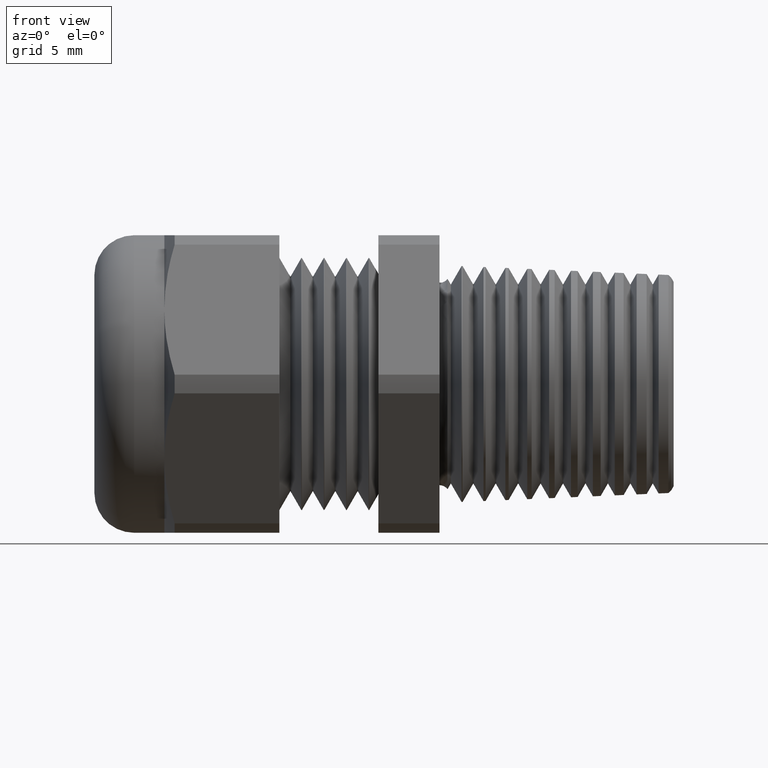
[diagram: clean part render]
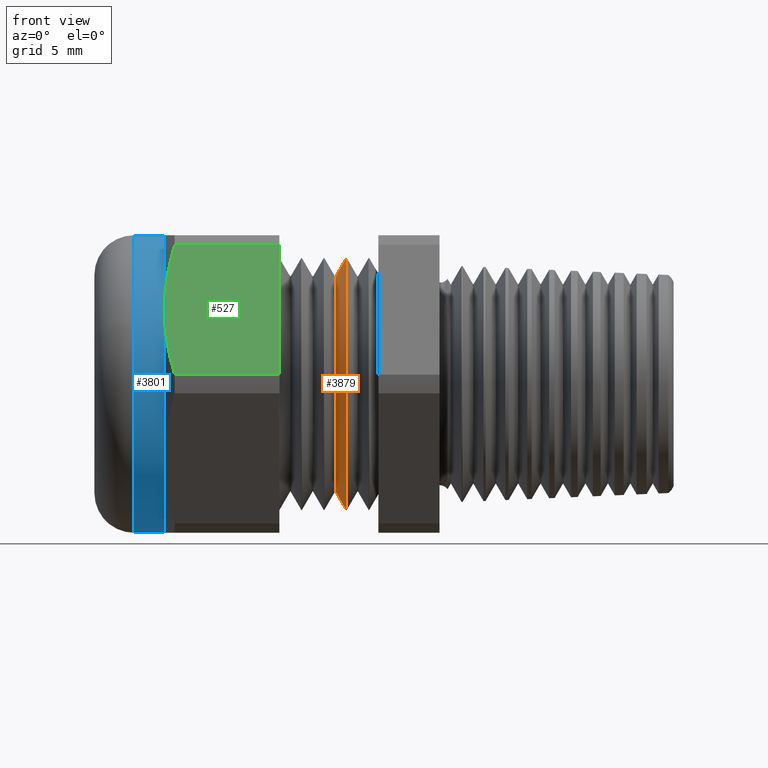
[diagram: same view with three faces highlighted in distinct colors, each labeled with its STEP entity id]
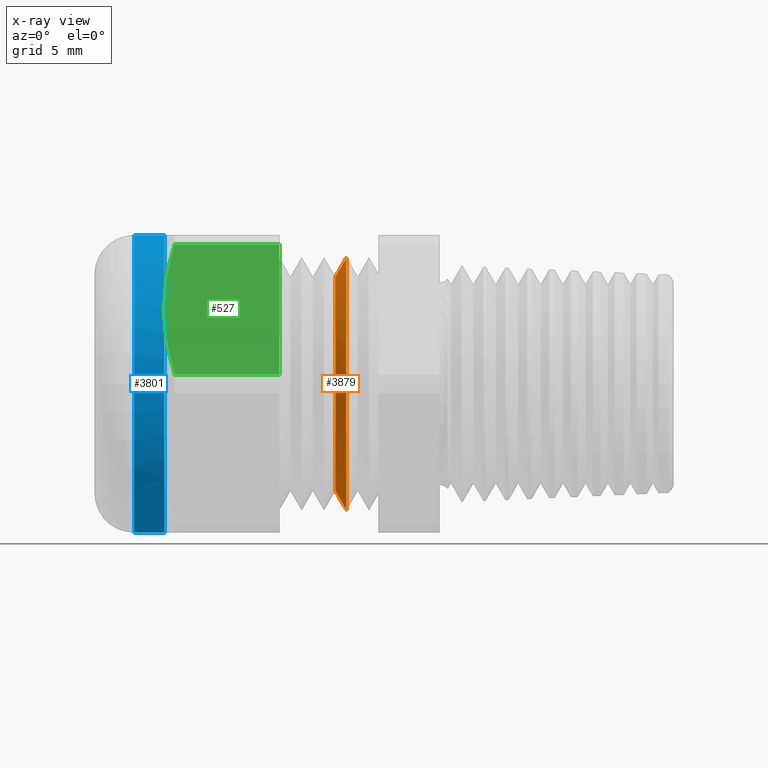
[diagram: x-ray of the same camera — body ghosted, the three highlighted faces saturated]
A machine part, front view with three faces highlighted in distinct colors.
The next image is the same camera in x-ray (body ghosted, the three faces saturated) — at least one of them is partly hidden behind the body in this view.
Their STEP definitions:

[orange] entity #3879 — the highlighted conical surface has half-angle 60 deg.
#108 = VERTEX_POINT ( 'NONE', #2159 ) ;
#110 = EDGE_CURVE ( 'NONE', #108, #111, #2117, .T. ) ;
#111 = VERTEX_POINT ( 'NONE', #2151 ) ;
#113 = VERTEX_POINT ( 'NONE', #2116 ) ;
#115 = EDGE_CURVE ( 'NONE', #129, #113, #2121, .T. ) ;
#129 = VERTEX_POINT ( 'NONE', #2136 ) ;
#436 = EDGE_CURVE ( 'NONE', #113, #111, #2713, .T. ) ;
#1288 = DIRECTION ( 'NONE',  ( 0.0000000000000000000, 0.0000000000000000000, -1.000000000000000000 ) ) ;
#1289 = DIRECTION ( 'NONE',  ( 1.000000000000000000, -0.0000000000000000000, -0.0000000000000000000 ) ) ;
#1290 = CARTESIAN_POINT ( 'NONE',  ( -0.2628611240625034500, 0.0000000000000000000, 0.0000000000000000000 ) ) ;
#1291 = AXIS2_PLACEMENT_3D ( 'NONE', #1290, #1289, #1288 ) ;
#1292 = CIRCLE ( 'NONE', #1291, 0.2698875000000000000 ) ;
#1341 = DIRECTION ( 'NONE',  ( 0.0000000000000000000, 0.0000000000000000000, -1.000000000000000000 ) ) ;
#1342 = DIRECTION ( 'NONE',  ( 1.000000000000000000, -0.0000000000000000000, -0.0000000000000000000 ) ) ;
#1343 = AXIS2_PLACEMENT_3D ( 'NONE', #1345, #1342, #1341 ) ;
#1345 = CARTESIAN_POINT ( 'NONE',  ( -0.2628611240625034500, 0.0000000000000000000, 0.0000000000000000000 ) ) ;
#1346 = CONICAL_SURFACE ( 'NONE', #1343, 0.2698875000000000000, 1.047197551196595400 ) ;
#1347 = FACE_OUTER_BOUND ( 'NONE', #3882, .T. ) ;
#2116 = CARTESIAN_POINT ( 'NONE',  ( -0.2350833592361174000, 0.0000000000000000000, 0.3180000000000000000 ) ) ;
#2117 = LINE ( 'NONE', #2144, #2160 ) ;
#2119 = VECTOR ( 'NONE', #2138, 39.37007874015748100 ) ;
#2120 = CARTESIAN_POINT ( 'NONE',  ( -0.2628611240625034500, 3.305059473172368400E-017, 0.2698875000000000000 ) ) ;
#2121 = LINE ( 'NONE', #2120, #2119 ) ;
#2136 = CARTESIAN_POINT ( 'NONE',  ( -0.2628611240625034500, 3.599653839163763600E-017, 0.2698875000000000000 ) ) ;
#2138 = DIRECTION ( 'NONE',  ( 0.5000000000000020000, 1.060540212046012000E-016, 0.8660254037844374900 ) ) ;
#2144 = CARTESIAN_POINT ( 'NONE',  ( -0.2628611240625034500, 0.0000000000000000000, -0.2698875000000000000 ) ) ;
#2151 = CARTESIAN_POINT ( 'NONE',  ( -0.2350833592361174000, 3.894248205155160100E-017, -0.3180000000000000000 ) ) ;
#2152 = DIRECTION ( 'NONE',  ( 0.5000000000000020000, 0.0000000000000000000, -0.8660254037844374900 ) ) ;
#2159 = CARTESIAN_POINT ( 'NONE',  ( -0.2628611240625034500, 0.0000000000000000000, -0.2698875000000000000 ) ) ;
#2160 = VECTOR ( 'NONE', #2152, 39.37007874015748100 ) ;
#2711 = CARTESIAN_POINT ( 'NONE',  ( -0.2350833592361174000, 0.0000000000000000000, 0.0000000000000000000 ) ) ;
#2712 = AXIS2_PLACEMENT_3D ( 'NONE', #2711, #2759, #2758 ) ;
#2713 = CIRCLE ( 'NONE', #2712, 0.3180000000000000000 ) ;
#2758 = DIRECTION ( 'NONE',  ( 0.0000000000000000000, 0.0000000000000000000, -1.000000000000000000 ) ) ;
#2759 = DIRECTION ( 'NONE',  ( 1.000000000000000000, -0.0000000000000000000, -0.0000000000000000000 ) ) ;
#3819 = ORIENTED_EDGE ( 'NONE', *, *, #3820, .T. ) ;
#3820 = EDGE_CURVE ( 'NONE', #129, #108, #1292, .T. ) ;
#3821 = ORIENTED_EDGE ( 'NONE', *, *, #110, .T. ) ;
#3879 = ADVANCED_FACE ( 'NONE', ( #1347 ), #1346, .T. ) ;
#3881 = ORIENTED_EDGE ( 'NONE', *, *, #115, .F. ) ;
#3882 = EDGE_LOOP ( 'NONE', ( #3881, #3819, #3821, #3910 ) ) ;
#3910 = ORIENTED_EDGE ( 'NONE', *, *, #436, .F. ) ;

[blue] entity #3801 — the highlighted cylindrical surface (partial cylindrical patch) has radius 9.525 mm, axis along (-1, -0, -0).
#18 = EDGE_CURVE ( 'NONE', #71, #4141, #1985, .T. ) ;
#30 = EDGE_CURVE ( 'NONE', #66, #101, #2020, .T. ) ;
#66 = VERTEX_POINT ( 'NONE', #2072 ) ;
#71 = VERTEX_POINT ( 'NONE', #2063 ) ;
#101 = VERTEX_POINT ( 'NONE', #2114 ) ;
#513 = VERTEX_POINT ( 'NONE', #2967 ) ;
#571 = VERTEX_POINT ( 'NONE', #2919 ) ;
#1242 = DIRECTION ( 'NONE',  ( 0.0000000000000000000, 0.0000000000000000000, 1.000000000000000000 ) ) ;
#1243 = DIRECTION ( 'NONE',  ( -1.000000000000000000, -0.0000000000000000000, -0.0000000000000000000 ) ) ;
#1244 = CARTESIAN_POINT ( 'NONE',  ( -0.6937499999999999800, 0.0000000000000000000, 0.0000000000000000000 ) ) ;
#1245 = AXIS2_PLACEMENT_3D ( 'NONE', #1244, #1243, #1242 ) ;
#1249 = CIRCLE ( 'NONE', #1245, 0.3749999999999998900 ) ;
#1252 = DIRECTION ( 'NONE',  ( 0.0000000000000000000, 0.0000000000000000000, 1.000000000000000000 ) ) ;
#1253 = DIRECTION ( 'NONE',  ( -1.000000000000000000, -0.0000000000000000000, -0.0000000000000000000 ) ) ;
#1254 = AXIS2_PLACEMENT_3D ( 'NONE', #1256, #1253, #1252 ) ;
#1256 = CARTESIAN_POINT ( 'NONE',  ( -0.7238591030180623300, 0.0000000000000000000, 0.0000000000000000000 ) ) ;
#1257 = CYLINDRICAL_SURFACE ( 'NONE', #1254, 0.3749999999999998300 ) ;
#1260 = FACE_OUTER_BOUND ( 'NONE', #3794, .T. ) ;
#1265 = DIRECTION ( 'NONE',  ( 0.0000000000000000000, 0.0000000000000000000, -1.000000000000000000 ) ) ;
#1266 = DIRECTION ( 'NONE',  ( 1.000000000000000000, 0.0000000000000000000, 0.0000000000000000000 ) ) ;
#1267 = CARTESIAN_POINT ( 'NONE',  ( -0.7700000000000000200, 0.0000000000000000000, 0.0000000000000000000 ) ) ;
#1268 = AXIS2_PLACEMENT_3D ( 'NONE', #1267, #1266, #1265 ) ;
#1272 = CIRCLE ( 'NONE', #1268, 0.3749999999999998300 ) ;
#1305 = DIRECTION ( 'NONE',  ( 0.0000000000000000000, 0.0000000000000000000, 1.000000000000000000 ) ) ;
#1306 = DIRECTION ( 'NONE',  ( -1.000000000000000000, -0.0000000000000000000, -0.0000000000000000000 ) ) ;
#1307 = CARTESIAN_POINT ( 'NONE',  ( -0.6937499999999999800, 0.0000000000000000000, 0.0000000000000000000 ) ) ;
#1308 = AXIS2_PLACEMENT_3D ( 'NONE', #1307, #1306, #1305 ) ;
#1312 = CIRCLE ( 'NONE', #1308, 0.3749999999999998900 ) ;
#1348 = DIRECTION ( 'NONE',  ( 0.0000000000000000000, 0.0000000000000000000, 1.000000000000000000 ) ) ;
#1349 = DIRECTION ( 'NONE',  ( -1.000000000000000000, -0.0000000000000000000, -0.0000000000000000000 ) ) ;
#1350 = CARTESIAN_POINT ( 'NONE',  ( -0.6937499999999999800, 0.0000000000000000000, 0.0000000000000000000 ) ) ;
#1351 = AXIS2_PLACEMENT_3D ( 'NONE', #1350, #1349, #1348 ) ;
#1352 = CIRCLE ( 'NONE', #1351, 0.3749999999999998900 ) ;
#1774 = CARTESIAN_POINT ( 'NONE',  ( -0.7700000000000000200, 4.592273826833912300E-017, -0.3749999999999998300 ) ) ;
#1978 = DIRECTION ( 'NONE',  ( -1.000000000000000000, -0.0000000000000000000, -0.0000000000000000000 ) ) ;
#1979 = VECTOR ( 'NONE', #1978, 39.37007874015748100 ) ;
#1982 = CARTESIAN_POINT ( 'NONE',  ( -0.7238591030180623300, 4.592273826833912300E-017, -0.3749999999999998300 ) ) ;
#1985 = LINE ( 'NONE', #1982, #1979 ) ;
#2020 = LINE ( 'NONE', #2025, #2029 ) ;
#2024 = DIRECTION ( 'NONE',  ( -1.000000000000000000, -0.0000000000000000000, -0.0000000000000000000 ) ) ;
#2025 = CARTESIAN_POINT ( 'NONE',  ( -0.7238591030180623300, 0.0000000000000000000, 0.3749999999999998300 ) ) ;
#2029 = VECTOR ( 'NONE', #2024, 39.37007874015748100 ) ;
#2063 = CARTESIAN_POINT ( 'NONE',  ( -0.6937499999999999800, 0.0000000000000000000, -0.3749999999999999400 ) ) ;
#2072 = CARTESIAN_POINT ( 'NONE',  ( -0.6937499999999999800, 0.0000000000000000000, 0.3749999999999999400 ) ) ;
#2114 = CARTESIAN_POINT ( 'NONE',  ( -0.7700000000000000200, 0.0000000000000000000, 0.3749999999999998300 ) ) ;
#2919 = CARTESIAN_POINT ( 'NONE',  ( -0.6937499999999999800, -0.3247595264191643900, -0.1875000000000000600 ) ) ;
#2967 = CARTESIAN_POINT ( 'NONE',  ( -0.6937499999999999800, -0.3247595264191644500, 0.1874999999999999700 ) ) ;
#3786 = ORIENTED_EDGE ( 'NONE', *, *, #3846, .T. ) ;
#3794 = EDGE_LOOP ( 'NONE', ( #3802, #3812, #3832, #3840, #3808, #3786 ) ) ;
#3801 = ADVANCED_FACE ( 'NONE', ( #1260 ), #1257, .T. ) ;
#3802 = ORIENTED_EDGE ( 'NONE', *, *, #18, .F. ) ;
#3806 = EDGE_CURVE ( 'NONE', #513, #66, #1249, .T. ) ;
#3808 = ORIENTED_EDGE ( 'NONE', *, *, #30, .T. ) ;
#3812 = ORIENTED_EDGE ( 'NONE', *, *, #3875, .T. ) ;
#3832 = ORIENTED_EDGE ( 'NONE', *, *, #3863, .T. ) ;
#3840 = ORIENTED_EDGE ( 'NONE', *, *, #3806, .T. ) ;
#3846 = EDGE_CURVE ( 'NONE', #101, #4141, #1272, .T. ) ;
#3863 = EDGE_CURVE ( 'NONE', #571, #513, #1312, .T. ) ;
#3875 = EDGE_CURVE ( 'NONE', #71, #571, #1352, .T. ) ;
#4141 = VERTEX_POINT ( 'NONE', #1774 ) ;

[green] entity #527 — the highlighted planar face has unit normal (0, -0.866, 0.5).
#424 = VERTEX_POINT ( 'NONE', #2700 ) ;
#434 = EDGE_CURVE ( 'NONE', #454, #424, #2863, .T. ) ;
#454 = VERTEX_POINT ( 'NONE', #2730 ) ;
#481 = ORIENTED_EDGE ( 'NONE', *, *, #434, .T. ) ;
#482 = ORIENTED_EDGE ( 'NONE', *, *, #496, .T. ) ;
#489 = VERTEX_POINT ( 'NONE', #2834 ) ;
#496 = EDGE_CURVE ( 'NONE', #424, #489, #2832, .T. ) ;
#513 = VERTEX_POINT ( 'NONE', #2967 ) ;
#514 = ORIENTED_EDGE ( 'NONE', *, *, #515, .T. ) ;
#515 = EDGE_CURVE ( 'NONE', #513, #454, #2975, .T. ) ;
#516 = ORIENTED_EDGE ( 'NONE', *, *, #517, .T. ) ;
#517 = EDGE_CURVE ( 'NONE', #520, #513, #2887, .T. ) ;
#520 = VERTEX_POINT ( 'NONE', #2950 ) ;
#525 = EDGE_LOOP ( 'NONE', ( #526, #516, #514, #481, #482 ) ) ;
#526 = ORIENTED_EDGE ( 'NONE', *, *, #538, .F. ) ;
#527 = ADVANCED_FACE ( 'NONE', ( #3034 ), #3033, .T. ) ;
#538 = EDGE_CURVE ( 'NONE', #520, #489, #2909, .T. ) ;
#2700 = CARTESIAN_POINT ( 'NONE',  ( -0.4037500000000000500, -0.4193309280160532100, 0.02369752749118811000 ) ) ;
#2730 = CARTESIAN_POINT ( 'NONE',  ( -0.6677692378864669200, -0.4193309280160532100, 0.02369752749118809300 ) ) ;
#2775 = DIRECTION ( 'NONE',  ( 1.000000000000000000, -0.0000000000000000000, -0.0000000000000000000 ) ) ;
#2776 = VECTOR ( 'NONE', #2775, 39.37007874015748100 ) ;
#2777 = CARTESIAN_POINT ( 'NONE',  ( -1.893568786317334100, -0.4193309280160532100, 0.02369752749118811000 ) ) ;
#2824 = DIRECTION ( 'NONE',  ( 0.0000000000000000000, 0.4999999999999998900, 0.8660254037844386000 ) ) ;
#2825 = VECTOR ( 'NONE', #2824, 39.37007874015748900 ) ;
#2826 = CARTESIAN_POINT ( 'NONE',  ( -0.4037499999999999400, -0.2452595264191644600, 0.3251980392017256900 ) ) ;
#2832 = LINE ( 'NONE', #2826, #2825 ) ;
#2834 = CARTESIAN_POINT ( 'NONE',  ( -0.4037500000000000500, -0.2301881248222755500, 0.3513024725088118600 ) ) ;
#2863 = LINE ( 'NONE', #2777, #2776 ) ;
#2887 = B_SPLINE_CURVE_WITH_KNOTS ( 'NONE', 3,
 ( #3041, #3040, #3039, #3038, #2952, #2951 ),
 .UNSPECIFIED., .F., .F.,
 ( 4, 2, 4 ),
 ( 2.361310733813614800E-007, 0.002424044080837160500, 0.004847852030600939000 ),
 .UNSPECIFIED. ) ;
#2890 = CARTESIAN_POINT ( 'NONE',  ( -0.6677692378864669200, -0.4193309280160532100, 0.02369752749118809300 ) ) ;
#2891 = CARTESIAN_POINT ( 'NONE',  ( -0.6758195584202751900, -0.4038497760571769800, 0.05051166924365636100 ) ) ;
#2906 = DIRECTION ( 'NONE',  ( 1.000000000000000000, -0.0000000000000000000, -0.0000000000000000000 ) ) ;
#2907 = VECTOR ( 'NONE', #2906, 39.37007874015748100 ) ;
#2908 = CARTESIAN_POINT ( 'NONE',  ( -1.893568786317334100, -0.2301881248222755500, 0.3513024725088118600 ) ) ;
#2909 = LINE ( 'NONE', #2908, #2907 ) ;
#2950 = CARTESIAN_POINT ( 'NONE',  ( -0.6677692378864669200, -0.2301881248222755500, 0.3513024725088118600 ) ) ;
#2951 = CARTESIAN_POINT ( 'NONE',  ( -0.6937499999999999800, -0.3247595264191644500, 0.1874999999999999700 ) ) ;
#2952 = CARTESIAN_POINT ( 'NONE',  ( -0.6937500000000000900, -0.3087588264986029200, 0.2152140252190755100 ) ) ;
#2967 = CARTESIAN_POINT ( 'NONE',  ( -0.6937499999999999800, -0.3247595264191644500, 0.1874999999999999700 ) ) ;
#2975 = B_SPLINE_CURVE_WITH_KNOTS ( 'NONE', 3,
 ( #2996, #3015, #3014, #3013, #3012, #3011, #2891, #2890 ),
 .UNSPECIFIED., .F., .F.,
 ( 4, 2, 2, 4 ),
 ( 0.004847852030600939000, 0.006051560003637246900, 0.007255267976673555500, 0.009662683922746172900 ),
 .UNSPECIFIED. ) ;
#2978 = AXIS2_PLACEMENT_3D ( 'NONE', #2981, #2980, #3029 ) ;
#2980 = DIRECTION ( 'NONE',  ( 0.0000000000000000000, -0.8660254037844387100, 0.4999999999999999400 ) ) ;
#2981 = CARTESIAN_POINT ( 'NONE',  ( -1.893568786317334100, -0.2301881248222756000, 0.3513024725088117500 ) ) ;
#2996 = CARTESIAN_POINT ( 'NONE',  ( -0.6937499999999999800, -0.3247595264191644500, 0.1874999999999999700 ) ) ;
#3011 = CARTESIAN_POINT ( 'NONE',  ( -0.6823587424992738600, -0.3882448539458462900, 0.07754018718863589500 ) ) ;
#3012 = CARTESIAN_POINT ( 'NONE',  ( -0.6890958449295795400, -0.3645858842861365300, 0.1185187246939837000 ) ) ;
#3013 = CARTESIAN_POINT ( 'NONE',  ( -0.6908293426401989100, -0.3566576088947343600, 0.1322509004882901900 ) ) ;
#3014 = CARTESIAN_POINT ( 'NONE',  ( -0.6931602879428223600, -0.3407080095351920400, 0.1598764169393856200 ) ) ;
#3015 = CARTESIAN_POINT ( 'NONE',  ( -0.6937499999999999800, -0.3327057707040790300, 0.1737367011691739200 ) ) ;
#3029 = DIRECTION ( 'NONE',  ( 0.0000000000000000000, -0.4999999999999998900, -0.8660254037844386000 ) ) ;
#3033 = PLANE ( 'NONE',  #2978 ) ;
#3034 = FACE_OUTER_BOUND ( 'NONE', #525, .T. ) ;
#3038 = CARTESIAN_POINT ( 'NONE',  ( -0.6913537581776824100, -0.2928902755234557600, 0.2426991617505271100 ) ) ;
#3039 = CARTESIAN_POINT ( 'NONE',  ( -0.6823975651380705900, -0.2613827955589028700, 0.2972717178675914300 ) ) ;
#3040 = CARTESIAN_POINT ( 'NONE',  ( -0.6758577677325458000, -0.2457427551186632000, 0.3243610625425181700 ) ) ;
#3041 = CARTESIAN_POINT ( 'NONE',  ( -0.6677692378864669200, -0.2301881248222755500, 0.3513024725088118600 ) ) ;